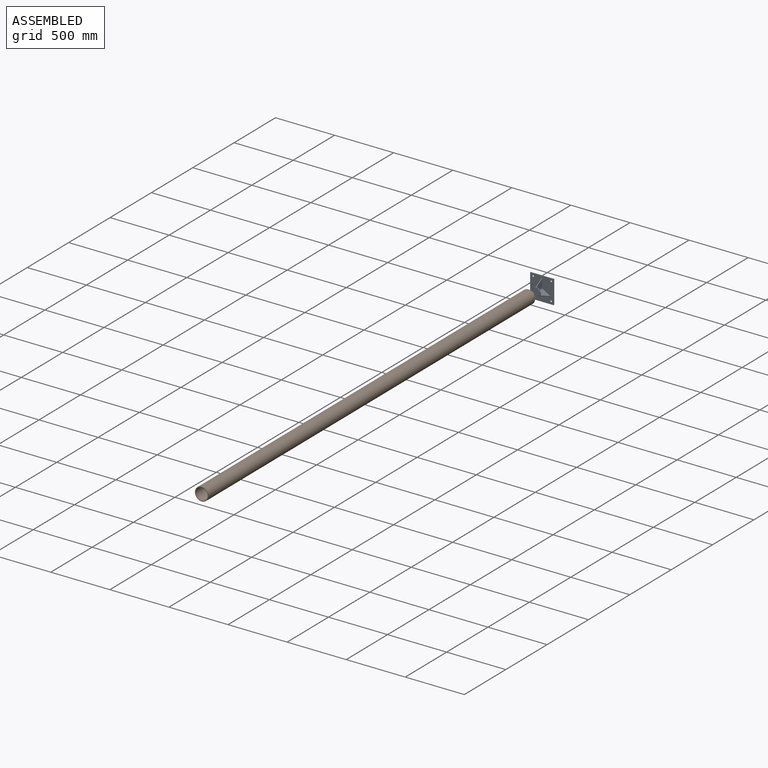
[diagram: assembled view]
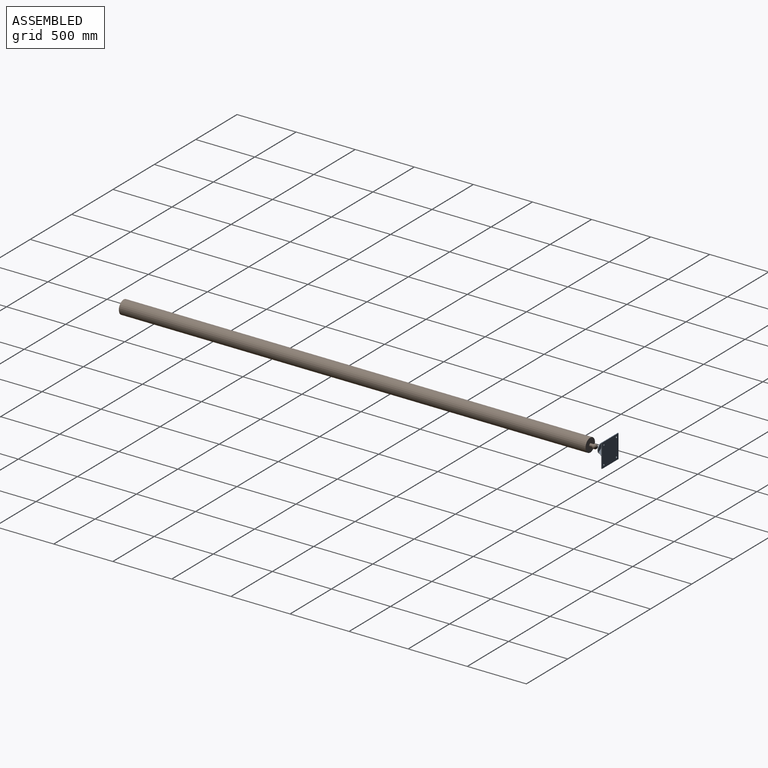
[diagram: assembled view, second angle]
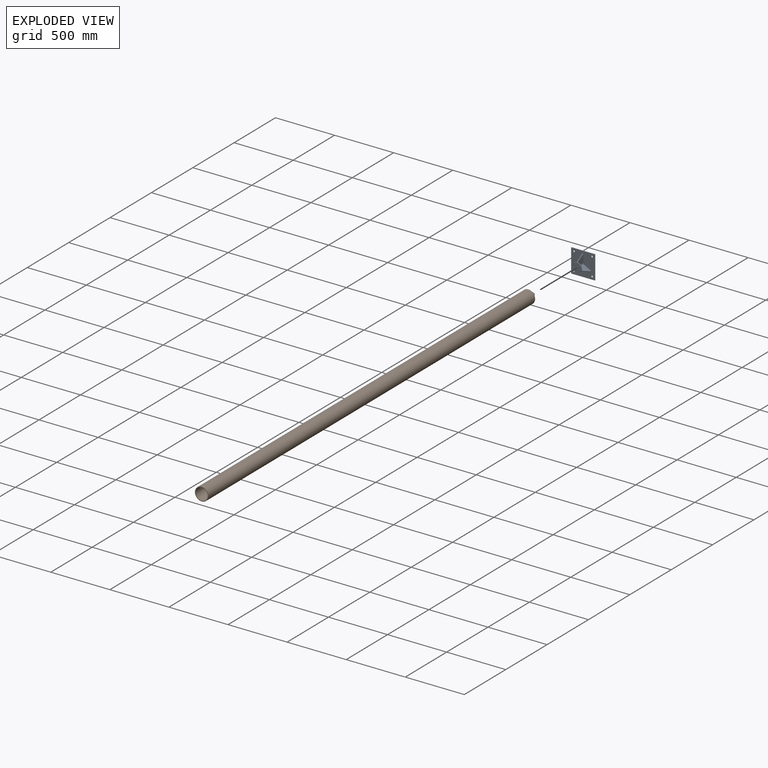
[diagram: exploded view]
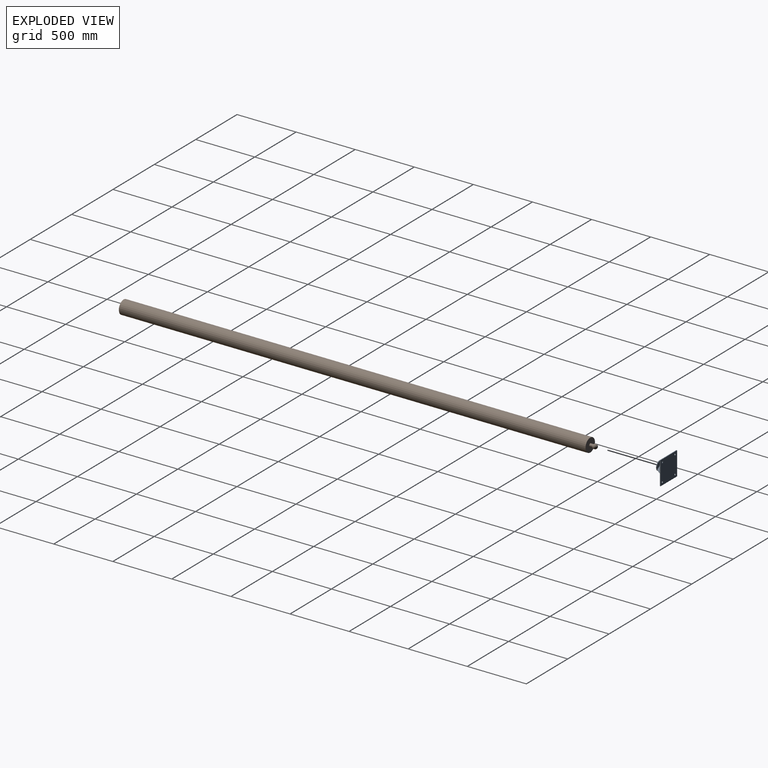
[diagram: exploded view, second angle]
ASSEMBLY  parts=2 mates=2
PART A: 30 faces, bbox 199.4x80.6x199.4 mm
  f0: plane 5.63x3.41mm, normal (0,-1,0), area 1.2mm2, adj f2,f23,f24,f27
  f1: plane 6.35x0.27mm, normal (0,-1,0), area 1.2mm2, adj f7,f19,f20,f27
  f2: plane 67.95x64.65mm, normal (0.5,0,0.87), area 3691.5mm2, adj f0,f16,f18,f24,f25
  f3: plane 5.63x3.41mm, normal (0,-1,0), area 1.2mm2, adj f5,f21,f22,f27
  f4: cylinder r=6.35mm len=67.95mm, axis (0,1,0), area 451.8mm2, adj f5,f16,f23,f29
  f5: plane 67.95x64.65mm, normal (0.5,0,-0.87), area 3691.5mm2, adj f3,f4,f16,f22,f29
  f6: cylinder r=6.35mm len=67.95mm, axis (0,1,0), area 451.8mm2, adj f7,f16,f21,f26
  f7: plane 74.65x67.95mm, normal (-1,0,0), area 3691.5mm2, adj f1,f6,f16,f20,f26
  f8: plane 199.39x6.35mm, normal (0,0,1), area 1266.1mm2, adj f9,f15,f16,f17
  f9: plane 199.39x6.35mm, normal (-1,0,0), area 1266.1mm2, adj f8,f10,f16,f17
  f10: plane 199.39x6.35mm, normal (0,0,-1), area 1266.1mm2, adj f9,f15,f16,f17
  f11: cylinder r=7.14mm len=14.29mm, axis (0,1,0), area 285mm2, adj f16,f17
  f12: cylinder r=7.14mm len=14.29mm, axis (0,1,0), area 285mm2, adj f16,f17
  f13: cylinder r=7.14mm len=14.29mm, axis (0,1,0), area 285mm2, adj f16,f17
  f14: cylinder r=7.14mm len=14.29mm, axis (0,1,0), area 285mm2, adj f16,f17
  f15: plane 199.39x6.35mm, normal (1,0,0), area 1266.1mm2, adj f8,f10,f16,f17
  f16: plane 199.39x199.39mm, normal (0,-1,0), area 37577.3mm2, adj f2,f4,f5,f6,f7,f8,f9,f10
  f17: plane 199.39x199.39mm, normal (0,1,0), area 39115.1mm2, adj f8,f9,f10,f11,f12,f13,f14,f15
  f18: cylinder r=6.35mm len=67.95mm, axis (0,1,0), area 451.8mm2, adj f2,f16,f19,f25
  f19: plane 74.65x67.95mm, normal (1,0,0), area 3691.5mm2, adj f1,f16,f18,f20,f25
  f20: plane 67.95x40.64mm, normal (0,-0.51,0.86), area 502.7mm2, adj f1,f7,f16,f19
  f21: plane 67.95x64.65mm, normal (-0.5,0,0.87), area 3691.5mm2, adj f3,f6,f16,f22,f26
  f22: plane 67.95x38.37mm, normal (-0.74,-0.51,-0.43), area 502.7mm2, adj f3,f5,f16,f21
  f23: plane 67.95x64.65mm, normal (-0.5,0,-0.87), area 3691.5mm2, adj f0,f4,f16,f24,f29
  f24: plane 67.95x38.37mm, normal (0.74,-0.51,-0.43), area 502.7mm2, adj f0,f2,f16,f23
  f25: plane 56.11x36.2mm, normal (0,1,0), area 1369.8mm2, adj f2,f18,f19,f27
  f26: plane 56.11x36.2mm, normal (0,1,0), area 1369.8mm2, adj f6,f7,f21,f27
  f27: cylinder r=39.37mm len=78.74mm, axis (0,1,0), area 1570.8mm2, adj f0,f1,f3,f25,f26,f28,f29
  f28: plane 78.74x78.74mm, normal (0,-1,0), area 4869.5mm2, adj f27
  f29: plane 64.79x33.87mm, normal (0,1,0), area 1369.8mm2, adj f4,f5,f23,f27
PART B: 7 faces, bbox 114.3x4011x114.3 mm
  f0: cylinder r=50.8mm len=3943.35mm, axis (0,1,0), area 1258661.4mm2, adj f2,f3
  f1: cylinder r=57.15mm len=3949.7mm, axis (0,1,0), area 1418274.2mm2, adj f2,f4
  f2: plane 114.3x114.3mm, normal (0,1,0), area 2153.5mm2, adj f0,f1
  f3: plane 101.6x101.6mm, normal (0,1,0), area 8107.3mm2, adj f0
  f4: plane 114.3x114.3mm, normal (0,-1,0), area 9754.1mm2, adj f1,f6
  f5: sphere r=20mm, area 4454.8mm2, adj f6
  f6: cylinder r=12.7mm len=25.82mm, axis (0,-1,0), area 2060.7mm2, adj f4,f5
PLACE A t=(-692.63,-15.51,310.29)mm fixed
PLACE B rot(axis=(-0.53,0,-0.85),180deg) t=(-679.18,-4134.76,256.83)mm
MATE cylindrical B.f0 <-> A.f4  axis (0,-1,0) through (-679.18,-4134.76,256.83)mm
MATE planar B.f1 <-> A.f4  axis (0,1,0) through (-679.18,-185.06,256.83)mm
